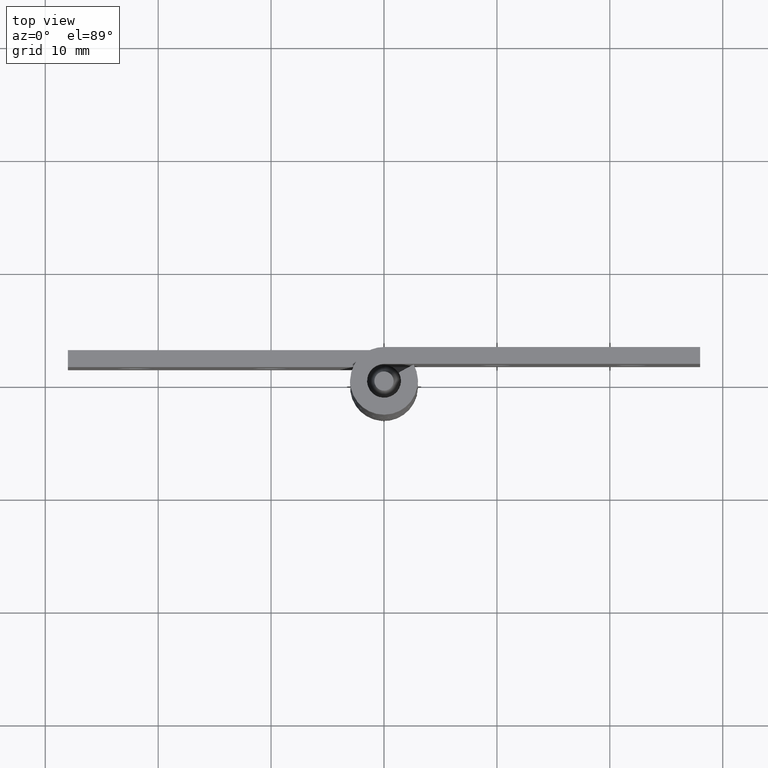
[diagram: clean part render]
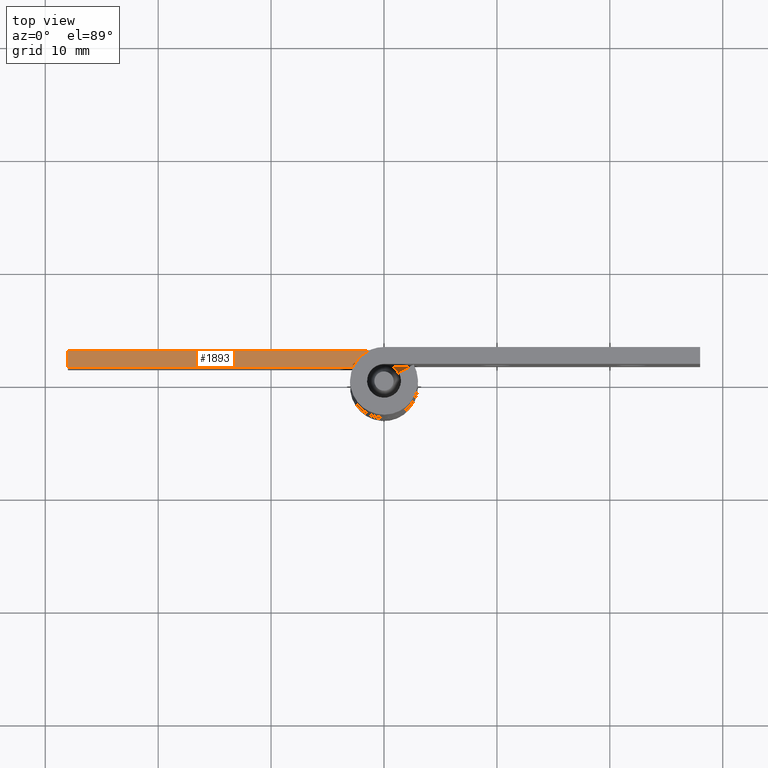
[diagram: same view with one face highlighted and labeled with its STEP entity id]
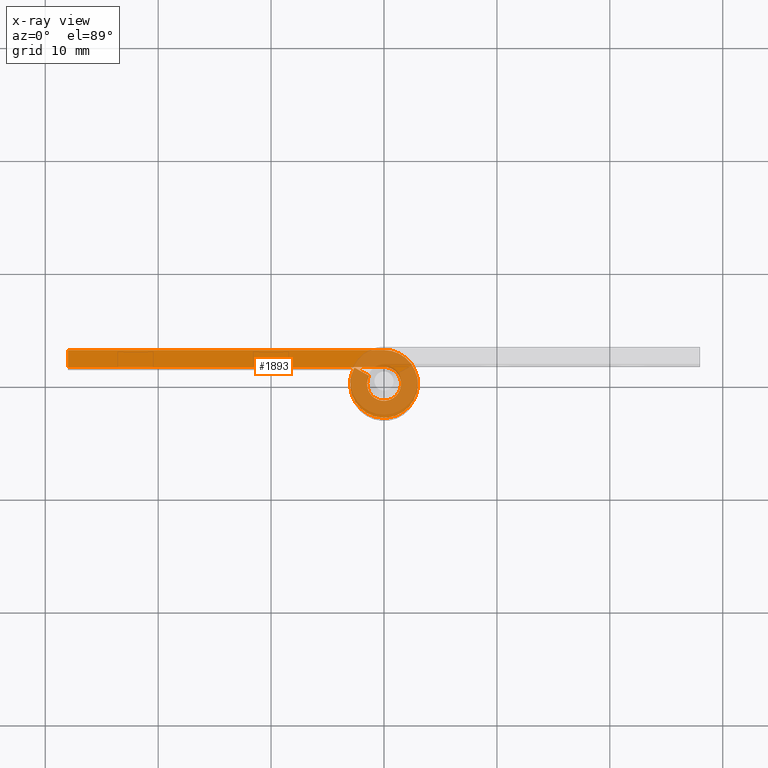
[diagram: x-ray of the same camera — body ghosted, the highlighted face saturated]
A machine part, top view. The second image highlights one B-rep face of the part: STEP entity #1893.
The next image is the same camera in x-ray: the body ghosted, the highlighted face saturated — about 33% of this face is hidden behind the body in this view.
In plain terms, the highlighted face is a freeform B-spline surface patch.
Its self-contained STEP definition (entity closure, byte-faithful):
#1816=CARTESIAN_POINT('',(-29.548447466705891,-3.299492229615193,16.0));
#1817=CARTESIAN_POINT('',(4.548398784471763,-3.299492229615193,16.0));
#1818=CARTESIAN_POINT('',(-29.548447466705891,3.299690265446972,16.0));
#1819=CARTESIAN_POINT('',(4.548398784471763,3.299690265446972,16.0));
#1820=B_SPLINE_SURFACE_WITH_KNOTS('',1,1,((#1816,#1818),(#1817,#1819)),.UNSPECIFIED.,.F.,.F.,.U.,(2,2),(2,2),(0.0,34.096846251177652),(0.0,6.599182495062165),.UNSPECIFIED.);
#1821=CARTESIAN_POINT('',(-28.0,1.500000000000000,16.0));
#1822=VERTEX_POINT('',#1821);
#1823=CARTESIAN_POINT('',(-2.755364E-016,1.500000000000000,16.0));
#1824=VERTEX_POINT('',#1823);
#1825=CARTESIAN_POINT('',(-28.0,1.500000000000000,16.0));
#1826=CARTESIAN_POINT('',(-2.755364E-016,1.500000000000000,16.0));
#1827=QUASI_UNIFORM_CURVE('',1,(#1825,#1826),.UNSPECIFIED.,.F.,.U.);
#1828=EDGE_CURVE('',#1822,#1824,#1827,.T.);
#1829=ORIENTED_EDGE('',*,*,#1828,.T.);
#1830=CARTESIAN_POINT('',(-1.313154598666890,0.725000000000000,16.0));
#1831=VERTEX_POINT('',#1830);
#1832=CARTESIAN_POINT('',(0.0,1.500000000000000,16.0));
#1833=CARTESIAN_POINT('',(1.145299021212404,1.500000000000001,16.000000000000004));
#1834=CARTESIAN_POINT('',(1.447014444021651,0.395157182387862,16.0));
#1835=CARTESIAN_POINT('',(1.748729866830897,-0.709685635224275,16.000000000000004));
#1836=CARTESIAN_POINT('',(0.762397534098847,-1.291801068276381,16.0));
#1837=CARTESIAN_POINT('',(-0.223934798633204,-1.873916501328487,16.000000000000004));
#1838=CARTESIAN_POINT('',(-1.045325295443044,-1.075776476182164,16.0));
#1839=CARTESIAN_POINT('',(-1.866715792252885,-0.277636451035840,16.000000000000004));
#1840=CARTESIAN_POINT('',(-1.313154598666891,0.724999999999998,16.0));
#1848=(BOUNDED_CURVE()B_SPLINE_CURVE(2,(#1832,#1833,#1834,#1835,#1836,#1837,#1838,#1839,#1840),.UNSPECIFIED.,.F.,.U.)B_SPLINE_CURVE_WITH_KNOTS((3,2,2,2,3),(0.0,0.250000000000000,0.500000000000000,0.750000000000000,1.0),.UNSPECIFIED.)CURVE()GEOMETRIC_REPRESENTATION_ITEM()RATIONAL_B_SPLINE_CURVE((1.0,0.794807562115481,1.0,0.794807562115481,1.0,0.794807562115481,1.0,0.794807562115481,1.0))REPRESENTATION_ITEM(''));
#1849=EDGE_CURVE('',#1824,#1831,#1848,.T.);
#1850=ORIENTED_EDGE('',*,*,#1849,.T.);
#1851=CARTESIAN_POINT('',(-2.626309197333780,1.450000000000000,16.0));
#1852=VERTEX_POINT('',#1851);
#1853=CARTESIAN_POINT('',(-1.313154598666890,0.725000000000000,16.0));
#1854=CARTESIAN_POINT('',(-2.626309197333780,1.450000000000000,16.0));
#1855=QUASI_UNIFORM_CURVE('',1,(#1853,#1854),.UNSPECIFIED.,.F.,.U.);
#1856=EDGE_CURVE('',#1831,#1852,#1855,.T.);
#1857=ORIENTED_EDGE('',*,*,#1856,.T.);
#1858=CARTESIAN_POINT('',(1.836910E-016,3.0,16.0));
#1859=VERTEX_POINT('',#1858);
#1860=CARTESIAN_POINT('',(0.0,3.0,16.0));
#1861=CARTESIAN_POINT('',(2.290598042424808,3.0,16.000000000000004));
#1862=CARTESIAN_POINT('',(2.894028888043301,0.790314364775724,16.0));
#1863=CARTESIAN_POINT('',(3.497459733661794,-1.419371270448550,16.000000000000004));
#1864=CARTESIAN_POINT('',(1.524795068197693,-2.583602136552761,16.0));
#1865=CARTESIAN_POINT('',(-0.447869597266408,-3.747833002656974,16.000000000000004));
#1866=CARTESIAN_POINT('',(-2.090650590886088,-2.151552952364328,16.0));
#1867=CARTESIAN_POINT('',(-3.733431584505768,-0.555272902071681,16.000000000000004));
#1868=CARTESIAN_POINT('',(-2.626309197333781,1.449999999999996,16.0));
#1876=(BOUNDED_CURVE()B_SPLINE_CURVE(2,(#1860,#1861,#1862,#1863,#1864,#1865,#1866,#1867,#1868),.UNSPECIFIED.,.F.,.U.)B_SPLINE_CURVE_WITH_KNOTS((3,2,2,2,3),(0.0,0.250000000000000,0.500000000000000,0.750000000000000,1.0),.UNSPECIFIED.)CURVE()GEOMETRIC_REPRESENTATION_ITEM()RATIONAL_B_SPLINE_CURVE((1.0,0.794807562115481,1.0,0.794807562115481,1.0,0.794807562115481,1.0,0.794807562115481,1.0))REPRESENTATION_ITEM(''));
#1877=EDGE_CURVE('',#1859,#1852,#1876,.T.);
#1878=ORIENTED_EDGE('',*,*,#1877,.F.);
#1879=CARTESIAN_POINT('',(-28.0,3.0,16.0));
#1880=VERTEX_POINT('',#1879);
#1881=CARTESIAN_POINT('',(1.836910E-016,3.0,16.0));
#1882=CARTESIAN_POINT('',(-28.0,3.0,16.0));
#1883=QUASI_UNIFORM_CURVE('',1,(#1881,#1882),.UNSPECIFIED.,.F.,.U.);
#1884=EDGE_CURVE('',#1859,#1880,#1883,.T.);
#1885=ORIENTED_EDGE('',*,*,#1884,.T.);
#1886=CARTESIAN_POINT('',(-28.0,3.0,16.0));
#1887=CARTESIAN_POINT('',(-28.0,1.500000000000000,16.0));
#1888=QUASI_UNIFORM_CURVE('',1,(#1886,#1887),.UNSPECIFIED.,.F.,.U.);
#1889=EDGE_CURVE('',#1880,#1822,#1888,.T.);
#1890=ORIENTED_EDGE('',*,*,#1889,.T.);
#1891=EDGE_LOOP('',(#1829,#1850,#1857,#1878,#1885,#1890));
#1892=FACE_OUTER_BOUND('',#1891,.T.);
#1893=ADVANCED_FACE('',(#1892),#1820,.T.);